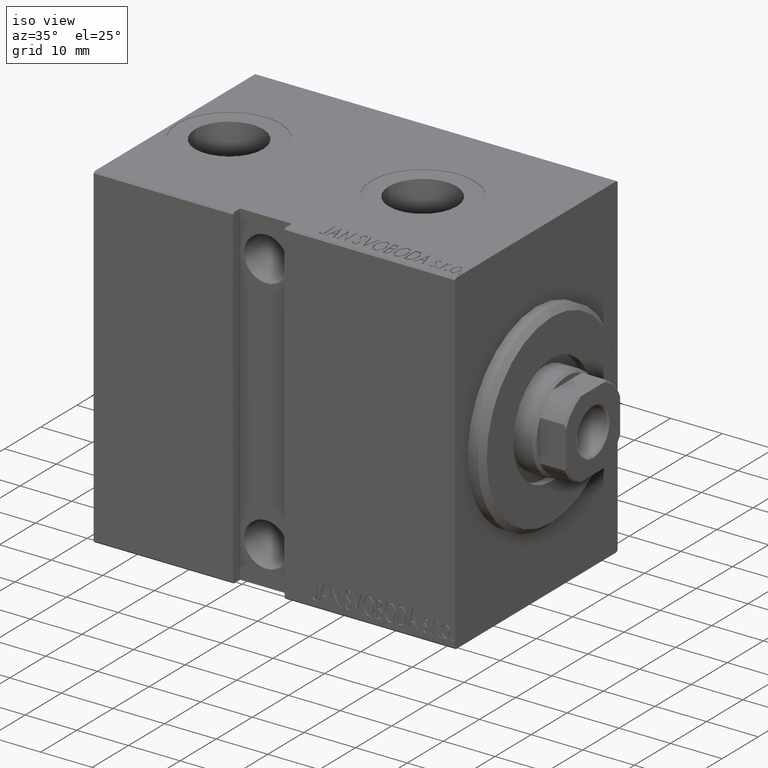
[diagram: clean part render]
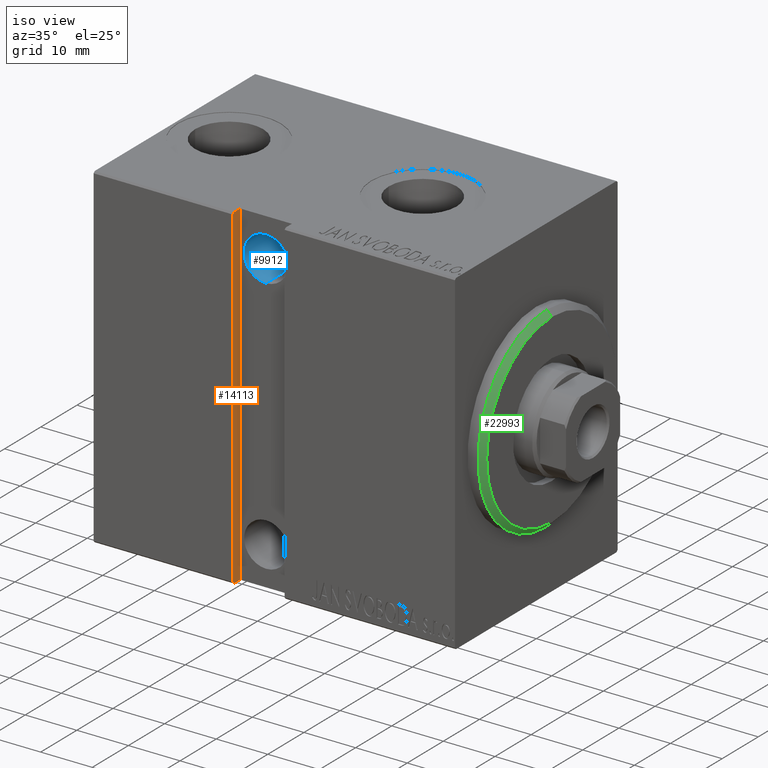
[diagram: same view with three faces highlighted in distinct colors, each labeled with its STEP entity id]
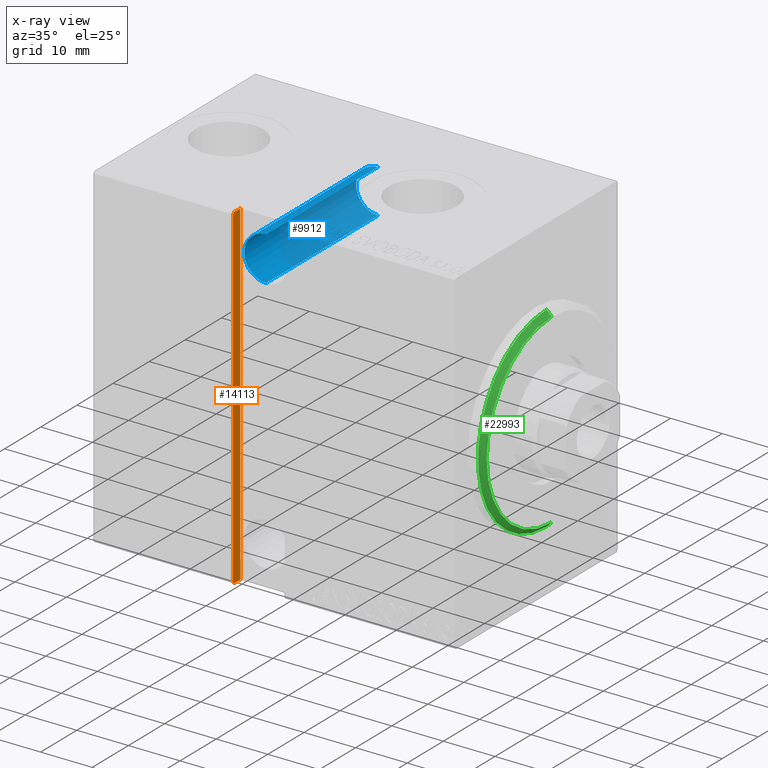
[diagram: x-ray of the same camera — body ghosted, the three highlighted faces saturated]
A machine part, iso view with three faces highlighted in distinct colors.
The next image is the same camera in x-ray (body ghosted, the three faces saturated) — at least one of them is partly hidden behind the body in this view.
Their STEP definitions:

[orange] entity #14113 — the highlighted planar face has unit normal (-1, 0, -0).
#1981 = LINE ( 'NONE', #18926, #33121 ) ;
#2973 = VERTEX_POINT ( 'NONE', #16419 ) ;
#5407 = VECTOR ( 'NONE', #26974, 1000.000000000000000 ) ;
#5682 = ORIENTED_EDGE ( 'NONE', *, *, #18322, .T. ) ;
#7110 = LINE ( 'NONE', #13141, #5407 ) ;
#7612 = CARTESIAN_POINT ( 'NONE',  ( 43.00000000000000000, 20.49999999999999645, -32.50000000000000000 ) ) ;
#7829 = DIRECTION ( 'NONE',  ( 1.000000000000000000, 0.000000000000000000, -1.067522139062651164E-16 ) ) ;
#8214 = VECTOR ( 'NONE', #35934, 1000.000000000000000 ) ;
#9394 = ORIENTED_EDGE ( 'NONE', *, *, #33298, .F. ) ;
#9812 = LINE ( 'NONE', #33476, #8214 ) ;
#10147 = ORIENTED_EDGE ( 'NONE', *, *, #21802, .T. ) ;
#10511 = PLANE ( 'NONE',  #15306 ) ;
#11841 = ORIENTED_EDGE ( 'NONE', *, *, #23800, .F. ) ;
#12016 = VERTEX_POINT ( 'NONE', #32123 ) ;
#13141 = CARTESIAN_POINT ( 'NONE',  ( 43.00000000000000711, 22.19999999999999929, 32.50000000000000711 ) ) ;
#13283 = VECTOR ( 'NONE', #34687, 1000.000000000000114 ) ;
#13487 = CARTESIAN_POINT ( 'NONE',  ( 43.00000000000000711, 20.49999999999999645, 32.49999999999995737 ) ) ;
#14113 = ADVANCED_FACE ( 'NONE', ( #27909 ), #10511, .F. ) ;
#15306 = AXIS2_PLACEMENT_3D ( 'NONE', #7612, #7829, #21432 ) ;
#16419 = CARTESIAN_POINT ( 'NONE',  ( 43.00000000000000000, 22.19999999999999574, -32.50000000000000000 ) ) ;
#17487 = CARTESIAN_POINT ( 'NONE',  ( 43.00000000000000000, 22.50000000000000355, -32.19999999999999574 ) ) ;
#18322 = EDGE_CURVE ( 'NONE', #22476, #37198, #9812, .T. ) ;
#18926 = CARTESIAN_POINT ( 'NONE',  ( 43.00000000000000000, 20.49999999999999645, -32.50000000000000000 ) ) ;
#19756 = VECTOR ( 'NONE', #24646, 1000.000000000000000 ) ;
#19964 = VERTEX_POINT ( 'NONE', #24421 ) ;
#21046 = LINE ( 'NONE', #17487, #13283 ) ;
#21432 = DIRECTION ( 'NONE',  ( -1.067522139062651164E-16, 0.000000000000000000, -1.000000000000000000 ) ) ;
#21802 = EDGE_CURVE ( 'NONE', #12016, #22476, #7110, .T. ) ;
#22051 = CARTESIAN_POINT ( 'NONE',  ( 43.00000000000000711, 22.50000000000000000, 32.20000000000000284 ) ) ;
#22476 = VERTEX_POINT ( 'NONE', #22051 ) ;
#23800 = EDGE_CURVE ( 'NONE', #31069, #19964, #30491, .T. ) ;
#24313 = EDGE_CURVE ( 'NONE', #31069, #12016, #31970, .T. ) ;
#24421 = CARTESIAN_POINT ( 'NONE',  ( 43.00000000000000711, 20.50000000000000000, -32.50000000000000000 ) ) ;
#24646 = DIRECTION ( 'NONE',  ( -1.067522139062651164E-16, -0.000000000000000000, -1.000000000000000000 ) ) ;
#26034 = ORIENTED_EDGE ( 'NONE', *, *, #39057, .T. ) ;
#26974 = DIRECTION ( 'NONE',  ( -7.548521435979779371E-17, 0.7071067811865393571, -0.7071067811865556774 ) ) ;
#27559 = CARTESIAN_POINT ( 'NONE',  ( 43.00000000000000000, 20.49999999999999645, -32.50000000000000000 ) ) ;
#27561 = EDGE_LOOP ( 'NONE', ( #5682, #26034, #9394, #11841, #29752, #10147 ) ) ;
#27909 = FACE_OUTER_BOUND ( 'NONE', #27561, .T. ) ;
#29744 = VECTOR ( 'NONE', #41582, 1000.000000000000000 ) ;
#29752 = ORIENTED_EDGE ( 'NONE', *, *, #24313, .T. ) ;
#30491 = LINE ( 'NONE', #27559, #19756 ) ;
#31069 = VERTEX_POINT ( 'NONE', #13487 ) ;
#31970 = LINE ( 'NONE', #38449, #29744 ) ;
#32123 = CARTESIAN_POINT ( 'NONE',  ( 43.00000000000000711, 22.19999999999999929, 32.49999999999995737 ) ) ;
#33121 = VECTOR ( 'NONE', #42382, 1000.000000000000000 ) ;
#33298 = EDGE_CURVE ( 'NONE', #19964, #2973, #1981, .T. ) ;
#33476 = CARTESIAN_POINT ( 'NONE',  ( 43.00000000000000000, 22.50000000000000000, -32.50000000000000000 ) ) ;
#34687 = DIRECTION ( 'NONE',  ( -7.548521435979691857E-17, -0.7071067811865474617, -0.7071067811865474617 ) ) ;
#35934 = DIRECTION ( 'NONE',  ( -1.067522139062651164E-16, -0.000000000000000000, -1.000000000000000000 ) ) ;
#37198 = VERTEX_POINT ( 'NONE', #44092 ) ;
#38449 = CARTESIAN_POINT ( 'NONE',  ( 43.00000000000000711, 20.49999999999999645, 32.49999999999995737 ) ) ;
#39057 = EDGE_CURVE ( 'NONE', #37198, #2973, #21046, .T. ) ;
#41582 = DIRECTION ( 'NONE',  ( -0.000000000000000000, 1.000000000000000000, -0.000000000000000000 ) ) ;
#42382 = DIRECTION ( 'NONE',  ( -0.000000000000000000, 1.000000000000000000, -0.000000000000000000 ) ) ;
#44092 = CARTESIAN_POINT ( 'NONE',  ( 43.00000000000000000, 22.50000000000000000, -32.19999999999999574 ) ) ;

[blue] entity #9912 — the highlighted cylindrical surface (edge-blend (fillet) strip) has radius 4.25 mm, axis along (0, -1, 0).
#3266 = CARTESIAN_POINT ( 'NONE',  ( 38.00000000000001421, 20.49999999999999645, 20.75000000000000355 ) ) ;
#6116 = VECTOR ( 'NONE', #38920, 1000.000000000000000 ) ;
#8112 = LINE ( 'NONE', #32209, #6116 ) ;
#8351 = VERTEX_POINT ( 'NONE', #8862 ) ;
#8862 = CARTESIAN_POINT ( 'NONE',  ( 38.00000000000001421, -10.49999999999999112, 29.25000000000000000 ) ) ;
#9046 = EDGE_CURVE ( 'NONE', #10039, #19782, #30148, .T. ) ;
#9072 = DIRECTION ( 'NONE',  ( 0.000000000000000000, -1.000000000000000000, 0.000000000000000000 ) ) ;
#9302 = DIRECTION ( 'NONE',  ( 0.000000000000000000, 0.000000000000000000, 1.000000000000000000 ) ) ;
#9912 = ADVANCED_FACE ( 'NONE', ( #12410 ), #32742, .F. ) ;
#10039 = VERTEX_POINT ( 'NONE', #3266 ) ;
#10890 = AXIS2_PLACEMENT_3D ( 'NONE', #43462, #9072, #29841 ) ;
#12377 = LINE ( 'NONE', #19082, #25451 ) ;
#12410 = FACE_OUTER_BOUND ( 'NONE', #36539, .T. ) ;
#12855 = CARTESIAN_POINT ( 'NONE',  ( 38.00000000000001421, -22.50000000000001421, 25.00000000000000000 ) ) ;
#16410 = EDGE_CURVE ( 'NONE', #25686, #10039, #8112, .T. ) ;
#18087 = ORIENTED_EDGE ( 'NONE', *, *, #9046, .F. ) ;
#19082 = CARTESIAN_POINT ( 'NONE',  ( 38.00000000000001421, -22.50000000000001421, 29.25000000000000000 ) ) ;
#19782 = VERTEX_POINT ( 'NONE', #41915 ) ;
#21268 = CARTESIAN_POINT ( 'NONE',  ( 38.00000000000001421, -10.49999999999999112, 20.75000000000000355 ) ) ;
#24457 = AXIS2_PLACEMENT_3D ( 'NONE', #36875, #26806, #37746 ) ;
#24939 = DIRECTION ( 'NONE',  ( -0.000000000000000000, 1.000000000000000000, -0.000000000000000000 ) ) ;
#25298 = ORIENTED_EDGE ( 'NONE', *, *, #16410, .F. ) ;
#25451 = VECTOR ( 'NONE', #24939, 1000.000000000000000 ) ;
#25686 = VERTEX_POINT ( 'NONE', #21268 ) ;
#25882 = CIRCLE ( 'NONE', #24457, 4.249999999999996447 ) ;
#26429 = ORIENTED_EDGE ( 'NONE', *, *, #30273, .F. ) ;
#26806 = DIRECTION ( 'NONE',  ( -0.000000000000000000, 1.000000000000000000, -1.963837897332234442E-16 ) ) ;
#28722 = ORIENTED_EDGE ( 'NONE', *, *, #39699, .T. ) ;
#29625 = DIRECTION ( 'NONE',  ( -0.000000000000000000, 1.000000000000000000, -0.000000000000000000 ) ) ;
#29841 = DIRECTION ( 'NONE',  ( 0.000000000000000000, 0.000000000000000000, -1.000000000000000000 ) ) ;
#30148 = CIRCLE ( 'NONE', #10890, 4.249999999999996447 ) ;
#30273 = EDGE_CURVE ( 'NONE', #8351, #25686, #25882, .T. ) ;
#32209 = CARTESIAN_POINT ( 'NONE',  ( 38.00000000000001421, -22.50000000000001421, 20.75000000000000355 ) ) ;
#32742 = CYLINDRICAL_SURFACE ( 'NONE', #35874, 4.249999999999996447 ) ;
#35874 = AXIS2_PLACEMENT_3D ( 'NONE', #12855, #29625, #9302 ) ;
#36539 = EDGE_LOOP ( 'NONE', ( #25298, #26429, #28722, #18087 ) ) ;
#36875 = CARTESIAN_POINT ( 'NONE',  ( 38.00000000000001421, -10.49999999999999112, 25.00000000000000000 ) ) ;
#37746 = DIRECTION ( 'NONE',  ( 0.000000000000000000, 0.000000000000000000, -1.000000000000000000 ) ) ;
#38920 = DIRECTION ( 'NONE',  ( -0.000000000000000000, 1.000000000000000000, -0.000000000000000000 ) ) ;
#39699 = EDGE_CURVE ( 'NONE', #8351, #19782, #12377, .T. ) ;
#41915 = CARTESIAN_POINT ( 'NONE',  ( 38.00000000000001421, 20.49999999999999645, 29.25000000000000000 ) ) ;
#43462 = CARTESIAN_POINT ( 'NONE',  ( 38.00000000000001421, 20.49999999999999645, 25.00000000000000000 ) ) ;

[green] entity #22993 — the highlighted conical surface has half-angle 45 deg.
#333 = FACE_OUTER_BOUND ( 'NONE', #28713, .T. ) ;
#761 = VERTEX_POINT ( 'NONE', #23500 ) ;
#1566 = VECTOR ( 'NONE', #29488, 1000.000000000000000 ) ;
#3947 = CIRCLE ( 'NONE', #18197, 17.99999999999999645 ) ;
#5147 = LINE ( 'NONE', #18768, #1566 ) ;
#5915 = EDGE_CURVE ( 'NONE', #40077, #12390, #5147, .T. ) ;
#6162 = DIRECTION ( 'NONE',  ( 1.000000000000000000, -0.000000000000000000, 0.000000000000000000 ) ) ;
#6594 = DIRECTION ( 'NONE',  ( 0.000000000000000000, 0.000000000000000000, -1.000000000000000000 ) ) ;
#10015 = LINE ( 'NONE', #23622, #16930 ) ;
#11984 = DIRECTION ( 'NONE',  ( -1.000000000000000000, 0.000000000000000000, 0.000000000000000000 ) ) ;
#12390 = VERTEX_POINT ( 'NONE', #37190 ) ;
#16051 = CIRCLE ( 'NONE', #17485, 19.00000000000000000 ) ;
#16857 = DIRECTION ( 'NONE',  ( -1.000000000000000000, 0.000000000000000000, 0.000000000000000000 ) ) ;
#16930 = VECTOR ( 'NONE', #33914, 1000.000000000000000 ) ;
#17485 = AXIS2_PLACEMENT_3D ( 'NONE', #23139, #11984, #25597 ) ;
#17844 = ORIENTED_EDGE ( 'NONE', *, *, #41885, .F. ) ;
#18197 = AXIS2_PLACEMENT_3D ( 'NONE', #23116, #6162, #6594 ) ;
#18555 = EDGE_CURVE ( 'NONE', #761, #12390, #16051, .T. ) ;
#18768 = CARTESIAN_POINT ( 'NONE',  ( 3.000000000000000000, 0.000000000000000000, 17.99999999999999645 ) ) ;
#20412 = DIRECTION ( 'NONE',  ( 0.000000000000000000, 0.000000000000000000, 1.000000000000000000 ) ) ;
#21008 = CARTESIAN_POINT ( 'NONE',  ( 3.000000000000000000, 2.265596578422603002E-15, -17.99999999999999645 ) ) ;
#22993 = ADVANCED_FACE ( 'NONE', ( #333 ), #31833, .T. ) ;
#23116 = CARTESIAN_POINT ( 'NONE',  ( 3.000000000000000000, 0.000000000000000000, 0.000000000000000000 ) ) ;
#23139 = CARTESIAN_POINT ( 'NONE',  ( 1.999999999999992228, 0.000000000000000000, 0.000000000000000000 ) ) ;
#23500 = CARTESIAN_POINT ( 'NONE',  ( 1.999999999999992228, 2.326828918379970970E-15, -19.00000000000000000 ) ) ;
#23622 = CARTESIAN_POINT ( 'NONE',  ( 3.000000000000000000, 2.204364238465235033E-15, -17.99999999999999645 ) ) ;
#25597 = DIRECTION ( 'NONE',  ( 0.000000000000000000, 0.000000000000000000, -1.000000000000000000 ) ) ;
#28265 = VERTEX_POINT ( 'NONE', #21008 ) ;
#28713 = EDGE_LOOP ( 'NONE', ( #17844, #40611, #30001, #43810 ) ) ;
#29488 = DIRECTION ( 'NONE',  ( -0.7071067811865487940, 0.000000000000000000, 0.7071067811865463515 ) ) ;
#30001 = ORIENTED_EDGE ( 'NONE', *, *, #5915, .T. ) ;
#31133 = CARTESIAN_POINT ( 'NONE',  ( 3.000000000000000000, 0.000000000000000000, 0.000000000000000000 ) ) ;
#31833 = CONICAL_SURFACE ( 'NONE', #35403, 17.99999999999999645, 0.7853981633974466137 ) ;
#33914 = DIRECTION ( 'NONE',  ( -0.7071067811865487940, 8.659560562354918067E-17, -0.7071067811865463515 ) ) ;
#35263 = EDGE_CURVE ( 'NONE', #40077, #28265, #3947, .T. ) ;
#35403 = AXIS2_PLACEMENT_3D ( 'NONE', #31133, #16857, #20412 ) ;
#35779 = CARTESIAN_POINT ( 'NONE',  ( 3.000000000000000000, 0.000000000000000000, 17.99999999999999645 ) ) ;
#37190 = CARTESIAN_POINT ( 'NONE',  ( 1.999999999999992228, 0.000000000000000000, 19.00000000000000000 ) ) ;
#40077 = VERTEX_POINT ( 'NONE', #35779 ) ;
#40611 = ORIENTED_EDGE ( 'NONE', *, *, #35263, .F. ) ;
#41885 = EDGE_CURVE ( 'NONE', #28265, #761, #10015, .T. ) ;
#43810 = ORIENTED_EDGE ( 'NONE', *, *, #18555, .F. ) ;